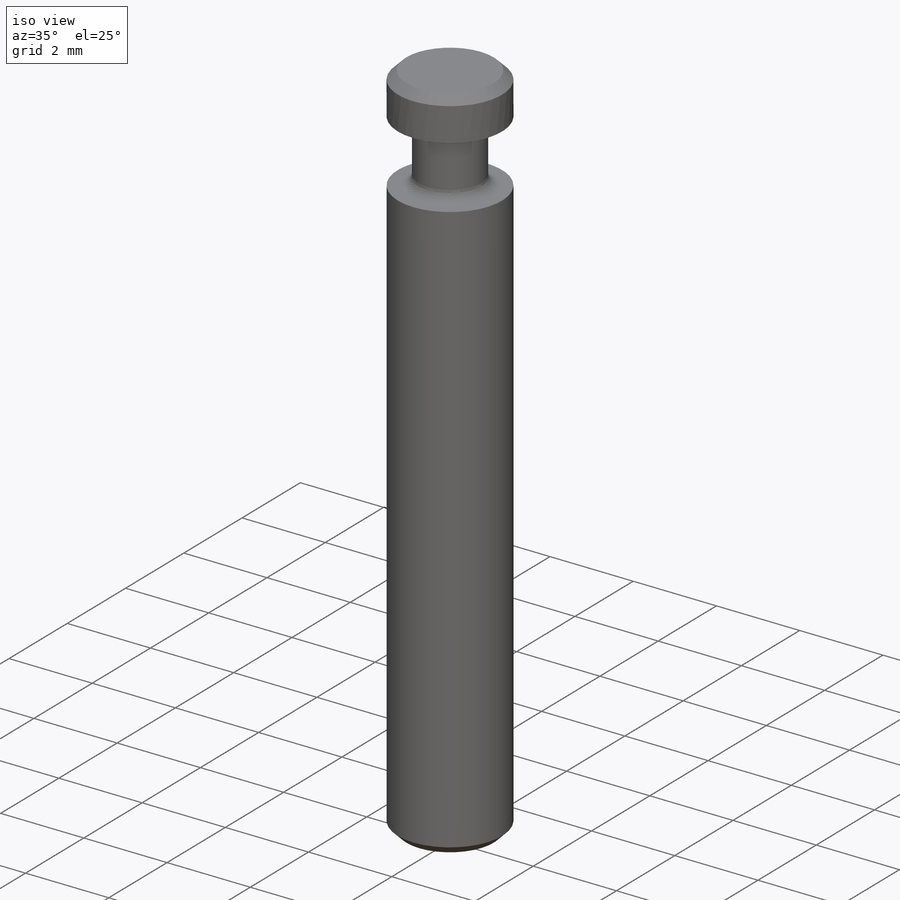
[diagram: iso view]
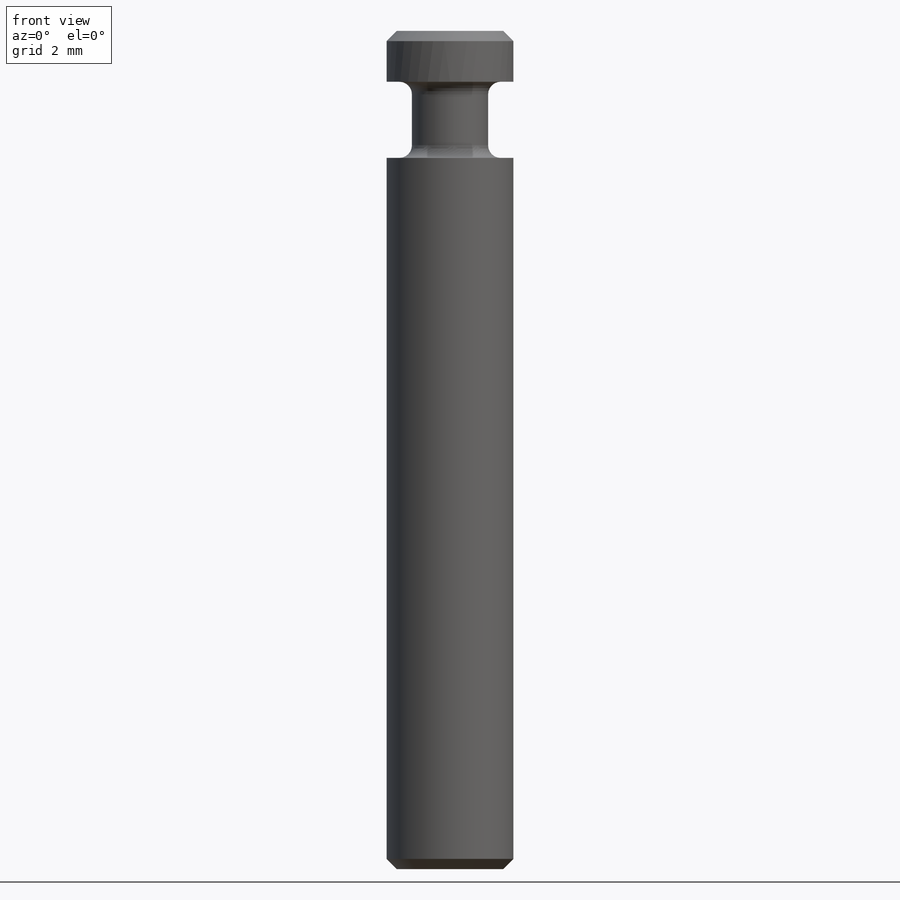
[diagram: front view]
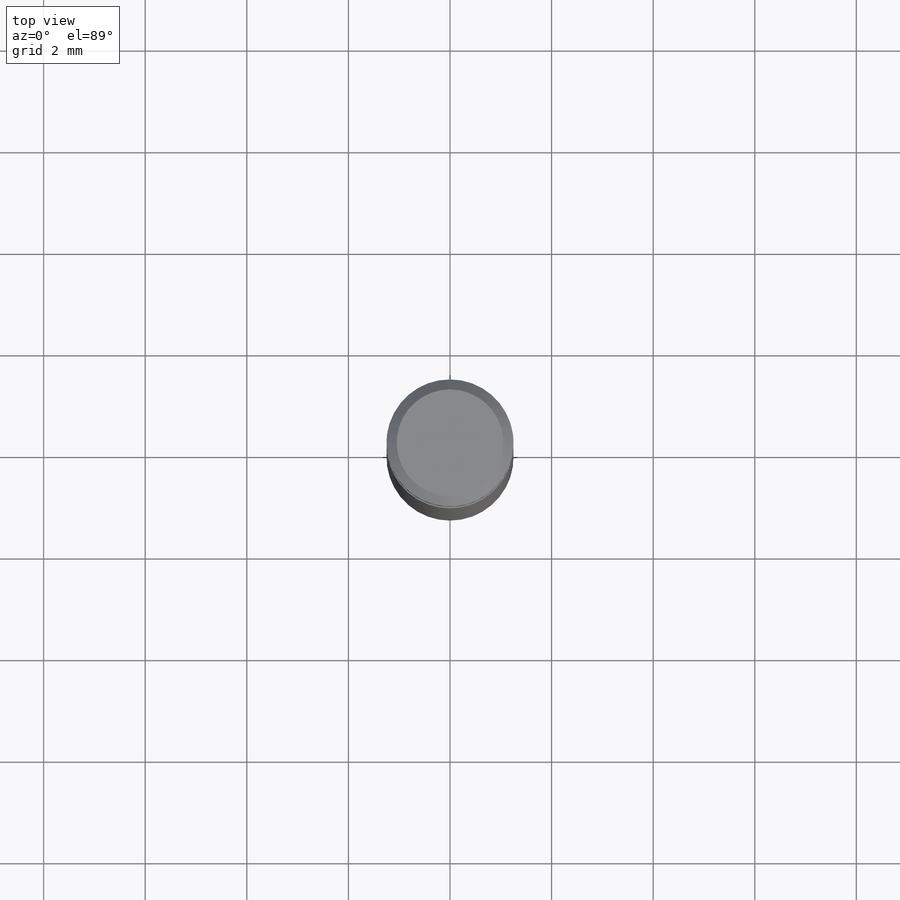
[diagram: top view]
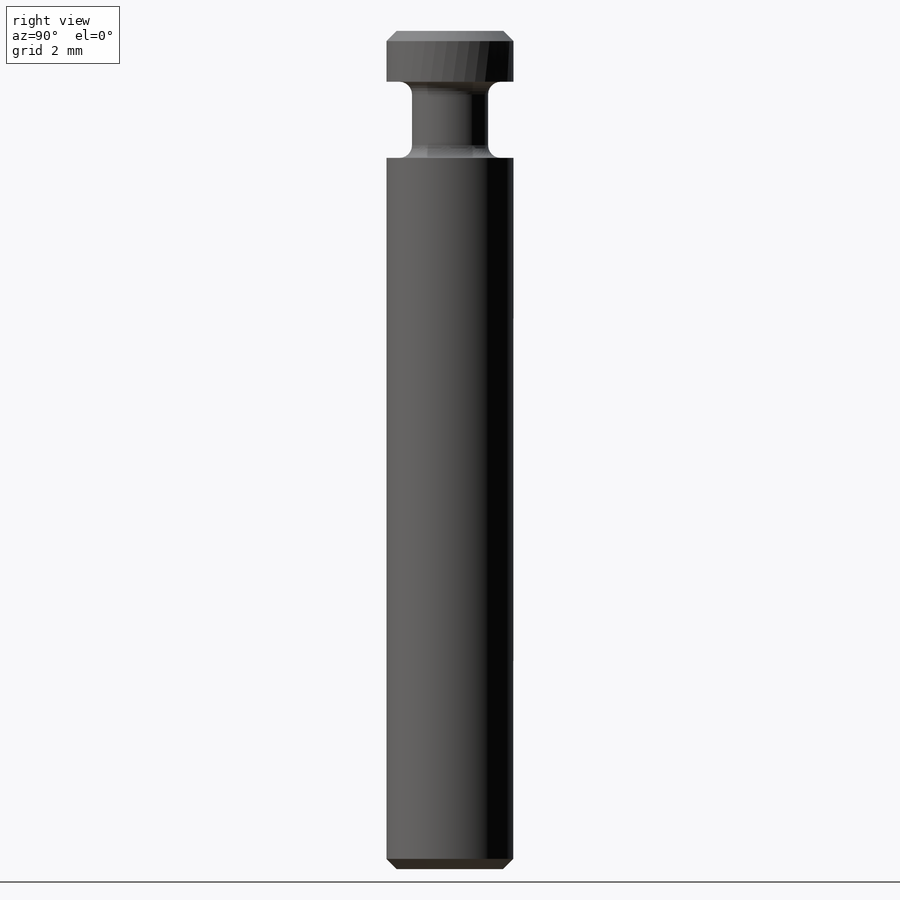
[diagram: right view]
SOLIDWORKS PART (.sldprt)
format: sldprt  version: not decoded by parser v0  size: 382,976 bytes
history: native  units: mm
features: plane x4, sketch x2, material x1, extrude x1, chamfer x1, cut_extrude x1, fillet x1 + 2 further entries (+13 scaffold rows collapsed; 1 parser-record rows omitted)
feature tree (27):
  parser-record x1  (decoder bookkeeping rows leaked as tree rows — omitted from the tree; the rows remain in map.json)
  scaffold x13  (default folders/planes/origin — collapsed)
  material  "Material <not specified>"
  plane  "Plane1"
  plane  "Plane2"
  plane  "Plane3"
  "Axis2"
  "Axis3"
  sketch  "Sketch1"  dims[D1=2.5mm]
  extrude  "Extrude1"  Depth=14.5mm
  chamfer  "Chamfer1"  Distance=0.2mm Angle=45deg
  plane  "Plane4"  Offset=12mm
  sketch  "Sketch2"  dims[D1=1.5mm]
  cut_extrude  "Extrude2"  Depth=1.5mm
  fillet  "Fillet1"  Radius=0.25mm
decode coverage: 6 of 6 modeling features carry decoded parameters; 2 rows unclassified (native names shown)
note: suppression state not decoded; provenance and decode notes live in map.json
